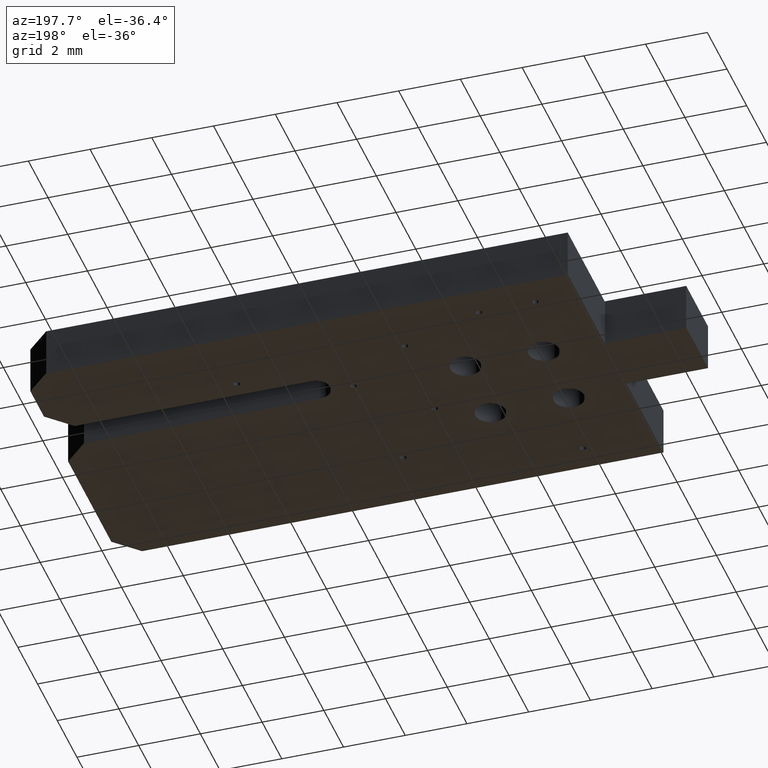
[diagram: clean part render]
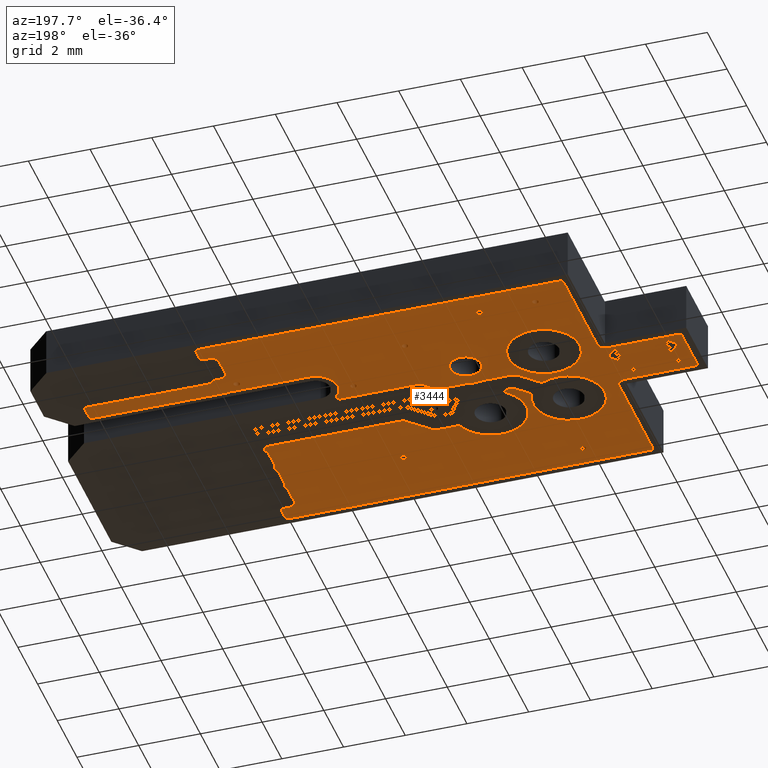
[diagram: same view with one face highlighted and labeled with its STEP entity id]
A machine part, auxiliary view. The second image highlights one B-rep face of the part: STEP entity #3444.
In plain terms, the highlighted planar face has unit normal (-0, -0, -1).
Its self-contained STEP definition (entity closure, byte-faithful):
#3444 = ADVANCED_FACE('',(#3445,#4072,#4092,#4112,#4132,#4152,#4172,
    #4192,#4212,#4232),#4252,.T.);
#3445 = FACE_BOUND('',#3446,.T.);
#3446 = EDGE_LOOP('',(#3447,#3457,#3466,#3474,#3483,#3491,#3500,#3508,
    #3517,#3525,#3534,#3542,#3551,#3559,#3568,#3576,#3585,#3593,#3601,
    #3609,#3617,#3625,#3633,#3642,#3651,#3659,#3668,#3676,#3685,#3693,
    #3702,#3710,#3719,#3727,#3736,#3745,#3754,#3763,#3771,#3780,#3788,
    #3797,#3806,#3815,#3824,#3832,#3841,#3849,#3858,#3866,#3875,#3884,
    #3893,#3902,#3910,#3919,#3928,#3937,#3945,#3954,#3963,#3972,#3980,
    #3989,#3997,#4006,#4014,#4023,#4031,#4040,#4048,#4057,#4065));
#3447 = ORIENTED_EDGE('',*,*,#3448,.T.);
#3448 = EDGE_CURVE('',#3449,#3451,#3453,.T.);
#3449 = VERTEX_POINT('',#3450);
#3450 = CARTESIAN_POINT('',(1.678943357887,-0.759461518923,0.));
#3451 = VERTEX_POINT('',#3452);
#3452 = CARTESIAN_POINT('',(1.678943357887,0.759461518923,0.));
#3453 = LINE('',#3454,#3455);
#3454 = CARTESIAN_POINT('',(1.678943357887,-0.759461518923,0.));
#3455 = VECTOR('',#3456,1.);
#3456 = DIRECTION('',(-1.461855534431E-16,1.,0.));
#3457 = ORIENTED_EDGE('',*,*,#3458,.T.);
#3458 = EDGE_CURVE('',#3451,#3459,#3461,.T.);
#3459 = VERTEX_POINT('',#3460);
#3460 = CARTESIAN_POINT('',(1.780543561087,0.861061722123,0.));
#3461 = CIRCLE('',#3462,0.1016002032);
#3462 = AXIS2_PLACEMENT_3D('',#3463,#3464,#3465);
#3463 = CARTESIAN_POINT('',(1.780543561087,0.759461518923,0.));
#3464 = DIRECTION('',(0.,0.,-1.));
#3465 = DIRECTION('',(-1.,-4.829260945186E-16,-0.));
#3466 = ORIENTED_EDGE('',*,*,#3467,.T.);
#3467 = EDGE_CURVE('',#3459,#3468,#3470,.T.);
#3468 = VERTEX_POINT('',#3469);
#3469 = CARTESIAN_POINT('',(4.064008128016,0.861061722123,0.));
#3470 = LINE('',#3471,#3472);
#3471 = CARTESIAN_POINT('',(1.780543561087,0.861061722123,0.));
#3472 = VECTOR('',#3473,1.);
#3473 = DIRECTION('',(1.,0.,0.));
#3474 = ORIENTED_EDGE('',*,*,#3475,.T.);
#3475 = EDGE_CURVE('',#3468,#3476,#3478,.T.);
#3476 = VERTEX_POINT('',#3477);
#3477 = CARTESIAN_POINT('',(4.320548641097,1.117602235204,0.));
#3478 = CIRCLE('',#3479,0.256540513081);
#3479 = AXIS2_PLACEMENT_3D('',#3480,#3481,#3482);
#3480 = CARTESIAN_POINT('',(4.064008128016,1.117602235204,0.));
#3481 = DIRECTION('',(0.,0.,1.));
#3482 = DIRECTION('',(5.355220058028E-16,-1.,0.));
#3483 = ORIENTED_EDGE('',*,*,#3484,.T.);
#3484 = EDGE_CURVE('',#3476,#3485,#3487,.T.);
#3485 = VERTEX_POINT('',#3486);
#3486 = CARTESIAN_POINT('',(4.320548641097,4.518669037338,0.));
#3487 = LINE('',#3488,#3489);
#3488 = CARTESIAN_POINT('',(4.320548641097,1.117602235204,0.));
#3489 = VECTOR('',#3490,1.);
#3490 = DIRECTION('',(0.,1.,0.));
#3491 = ORIENTED_EDGE('',*,*,#3492,.T.);
#3492 = EDGE_CURVE('',#3485,#3493,#3495,.T.);
#3493 = VERTEX_POINT('',#3494);
#3494 = CARTESIAN_POINT('',(4.422148844298,4.620269240538,0.));
#3495 = CIRCLE('',#3496,0.1016002032);
#3496 = AXIS2_PLACEMENT_3D('',#3497,#3498,#3499);
#3497 = CARTESIAN_POINT('',(4.422148844298,4.518669037338,0.));
#3498 = DIRECTION('',(0.,0.,-1.));
#3499 = DIRECTION('',(-1.,9.658521890372E-17,0.));
#3500 = ORIENTED_EDGE('',*,*,#3501,.T.);
#3501 = EDGE_CURVE('',#3493,#3502,#3504,.T.);
#3502 = VERTEX_POINT('',#3503);
#3503 = CARTESIAN_POINT('',(16.129032258065,4.620269240538,0.));
#3504 = LINE('',#3505,#3506);
#3505 = CARTESIAN_POINT('',(4.422148844298,4.620269240538,0.));
#3506 = VECTOR('',#3507,1.);
#3507 = DIRECTION('',(1.,0.,0.));
#3508 = ORIENTED_EDGE('',*,*,#3509,.T.);
#3509 = EDGE_CURVE('',#3502,#3510,#3512,.T.);
#3510 = VERTEX_POINT('',#3511);
#3511 = CARTESIAN_POINT('',(16.230632461265,4.518669037338,0.));
#3512 = CIRCLE('',#3513,0.1016002032);
#3513 = AXIS2_PLACEMENT_3D('',#3514,#3515,#3516);
#3514 = CARTESIAN_POINT('',(16.129032258065,4.518669037338,0.));
#3515 = DIRECTION('',(0.,0.,-1.));
#3516 = DIRECTION('',(4.442920069571E-15,1.,0.));
#3517 = ORIENTED_EDGE('',*,*,#3518,.T.);
#3518 = EDGE_CURVE('',#3510,#3519,#3521,.T.);
#3519 = VERTEX_POINT('',#3520);
#3520 = CARTESIAN_POINT('',(16.230632461265,4.163068326137,0.));
#3521 = LINE('',#3522,#3523);
#3522 = CARTESIAN_POINT('',(16.230632461265,4.518669037338,0.));
#3523 = VECTOR('',#3524,1.);
#3524 = DIRECTION('',(9.990738395313E-15,-1.,0.));
#3525 = ORIENTED_EDGE('',*,*,#3526,.T.);
#3526 = EDGE_CURVE('',#3519,#3527,#3529,.T.);
#3527 = VERTEX_POINT('',#3528);
#3528 = CARTESIAN_POINT('',(16.129032258065,4.061468122936,0.));
#3529 = CIRCLE('',#3530,0.1016002032);
#3530 = AXIS2_PLACEMENT_3D('',#3531,#3532,#3533);
#3531 = CARTESIAN_POINT('',(16.129032258065,4.163068326137,0.));
#3532 = DIRECTION('',(0.,0.,-1.));
#3533 = DIRECTION('',(1.,-1.313558977091E-14,0.));
#3534 = ORIENTED_EDGE('',*,*,#3535,.T.);
#3535 = EDGE_CURVE('',#3527,#3536,#3538,.T.);
#3536 = VERTEX_POINT('',#3537);
#3537 = CARTESIAN_POINT('',(15.963931927864,4.061468122936,0.));
#3538 = LINE('',#3539,#3540);
#3539 = CARTESIAN_POINT('',(16.129032258065,4.061468122936,0.));
#3540 = VECTOR('',#3541,1.);
#3541 = DIRECTION('',(-1.,5.379628366707E-15,0.));
#3542 = ORIENTED_EDGE('',*,*,#3543,.T.);
#3543 = EDGE_CURVE('',#3536,#3544,#3546,.T.);
#3544 = VERTEX_POINT('',#3545);
#3545 = CARTESIAN_POINT('',(15.707391414783,3.804927609855,0.));
#3546 = CIRCLE('',#3547,0.256540513081);
#3547 = AXIS2_PLACEMENT_3D('',#3548,#3549,#3550);
#3548 = CARTESIAN_POINT('',(15.963931927864,3.804927609855,0.));
#3549 = DIRECTION('',(0.,0.,1.));
#3550 = DIRECTION('',(2.448100597956E-15,1.,-0.));
#3551 = ORIENTED_EDGE('',*,*,#3552,.T.);
#3552 = EDGE_CURVE('',#3544,#3553,#3555,.T.);
#3553 = VERTEX_POINT('',#3554);
#3554 = CARTESIAN_POINT('',(15.707391414783,3.195326390653,0.));
#3555 = LINE('',#3556,#3557);
#3556 = CARTESIAN_POINT('',(15.707391414783,3.804927609855,0.));
#3557 = VECTOR('',#3558,1.);
#3558 = DIRECTION('',(2.913965365299E-15,-1.,0.));
#3559 = ORIENTED_EDGE('',*,*,#3560,.T.);
#3560 = EDGE_CURVE('',#3553,#3561,#3563,.T.);
#3561 = VERTEX_POINT('',#3562);
#3562 = CARTESIAN_POINT('',(15.963931927864,2.938785877572,0.));
#3563 = CIRCLE('',#3564,0.256540513081);
#3564 = AXIS2_PLACEMENT_3D('',#3565,#3566,#3567);
#3565 = CARTESIAN_POINT('',(15.963931927864,3.195326390653,0.));
#3566 = DIRECTION('',(0.,0.,1.));
#3567 = DIRECTION('',(-1.,1.683069161095E-15,0.));
#3568 = ORIENTED_EDGE('',*,*,#3569,.T.);
#3569 = EDGE_CURVE('',#3561,#3570,#3572,.T.);
#3570 = VERTEX_POINT('',#3571);
#3571 = CARTESIAN_POINT('',(16.129032258065,2.938785877572,0.));
#3572 = LINE('',#3573,#3574);
#3573 = CARTESIAN_POINT('',(15.963931927864,2.938785877572,0.));
#3574 = VECTOR('',#3575,1.);
#3575 = DIRECTION('',(1.,2.689814183353E-15,0.));
#3576 = ORIENTED_EDGE('',*,*,#3577,.T.);
#3577 = EDGE_CURVE('',#3570,#3578,#3580,.T.);
#3578 = VERTEX_POINT('',#3579);
#3579 = CARTESIAN_POINT('',(16.230632461265,2.837185674371,0.));
#3580 = CIRCLE('',#3581,0.1016002032);
#3581 = AXIS2_PLACEMENT_3D('',#3582,#3583,#3584);
#3582 = CARTESIAN_POINT('',(16.129032258065,2.837185674371,0.));
#3583 = DIRECTION('',(0.,0.,-1.));
#3584 = DIRECTION('',(6.567794885453E-15,1.,0.));
#3585 = ORIENTED_EDGE('',*,*,#3586,.T.);
#3586 = EDGE_CURVE('',#3578,#3587,#3589,.T.);
#3587 = VERTEX_POINT('',#3588);
#3588 = CARTESIAN_POINT('',(16.230632461265,2.804165608331,0.));
#3589 = LINE('',#3590,#3591);
#3590 = CARTESIAN_POINT('',(16.230632461265,2.837185674371,0.));
#3591 = VECTOR('',#3592,1.);
#3592 = DIRECTION('',(1.075925673341E-13,-1.,0.));
#3593 = ORIENTED_EDGE('',*,*,#3594,.T.);
#3594 = EDGE_CURVE('',#3587,#3595,#3597,.T.);
#3595 = VERTEX_POINT('',#3596);
#3596 = CARTESIAN_POINT('',(20.408940817882,2.804165608331,0.));
#3597 = LINE('',#3598,#3599);
#3598 = CARTESIAN_POINT('',(16.230632461265,2.804165608331,0.));
#3599 = VECTOR('',#3600,1.);
#3600 = DIRECTION('',(1.,-1.06284451014E-16,0.));
#3601 = ORIENTED_EDGE('',*,*,#3602,.T.);
#3602 = EDGE_CURVE('',#3595,#3603,#3605,.T.);
#3603 = VERTEX_POINT('',#3604);
#3604 = CARTESIAN_POINT('',(20.408940817882,2.194564389129,0.));
#3605 = LINE('',#3606,#3607);
#3606 = CARTESIAN_POINT('',(20.408940817882,2.804165608331,0.));
#3607 = VECTOR('',#3608,1.);
#3608 = DIRECTION('',(0.,-1.,0.));
#3609 = ORIENTED_EDGE('',*,*,#3610,.T.);
#3610 = EDGE_CURVE('',#3603,#3611,#3613,.T.);
#3611 = VERTEX_POINT('',#3612);
#3612 = CARTESIAN_POINT('',(15.963931927864,2.194564389129,0.));
#3613 = LINE('',#3614,#3615);
#3614 = CARTESIAN_POINT('',(20.408940817882,2.194564389129,0.));
#3615 = VECTOR('',#3616,1.);
#3616 = DIRECTION('',(-1.,9.990738395313E-17,0.));
#3617 = ORIENTED_EDGE('',*,*,#3618,.T.);
#3618 = EDGE_CURVE('',#3611,#3619,#3621,.T.);
#3619 = VERTEX_POINT('',#3620);
#3620 = CARTESIAN_POINT('',(15.963931927864,2.214884429769,0.));
#3621 = LINE('',#3622,#3623);
#3622 = CARTESIAN_POINT('',(15.963931927864,2.194564389129,0.));
#3623 = VECTOR('',#3624,1.);
#3624 = DIRECTION('',(0.,1.,0.));
#3625 = ORIENTED_EDGE('',*,*,#3626,.T.);
#3626 = EDGE_CURVE('',#3619,#3627,#3629,.T.);
#3627 = VERTEX_POINT('',#3628);
#3628 = CARTESIAN_POINT('',(13.309626619253,2.214884429769,0.));
#3629 = LINE('',#3630,#3631);
#3630 = CARTESIAN_POINT('',(15.963931927864,2.214884429769,0.));
#3631 = VECTOR('',#3632,1.);
#3632 = DIRECTION('',(-1.,1.673090161894E-16,0.));
#3633 = ORIENTED_EDGE('',*,*,#3634,.T.);
#3634 = EDGE_CURVE('',#3627,#3635,#3637,.T.);
#3635 = VERTEX_POINT('',#3636);
#3636 = CARTESIAN_POINT('',(12.796235489926,1.005303942072,0.));
#3637 = CIRCLE('',#3638,0.713741427483);
#3638 = AXIS2_PLACEMENT_3D('',#3639,#3640,#3641);
#3639 = CARTESIAN_POINT('',(13.309626619253,1.501143002286,0.));
#3640 = DIRECTION('',(0.,0.,1.));
#3641 = DIRECTION('',(-1.689808105186E-16,1.,0.));
#3642 = ORIENTED_EDGE('',*,*,#3643,.T.);
#3643 = EDGE_CURVE('',#3635,#3644,#3646,.T.);
#3644 = VERTEX_POINT('',#3645);
#3645 = CARTESIAN_POINT('',(12.723154902122,0.833121666243,0.));
#3646 = CIRCLE('',#3647,0.1016002032);
#3647 = AXIS2_PLACEMENT_3D('',#3648,#3649,#3650);
#3648 = CARTESIAN_POINT('',(12.723154902122,0.934721869444,0.));
#3649 = DIRECTION('',(0.,0.,-1.));
#3650 = DIRECTION('',(0.719295685466,0.694704049844,0.));
#3651 = ORIENTED_EDGE('',*,*,#3652,.T.);
#3652 = EDGE_CURVE('',#3644,#3653,#3655,.T.);
#3653 = VERTEX_POINT('',#3654);
#3654 = CARTESIAN_POINT('',(10.279400558801,0.833121666243,0.));
#3655 = LINE('',#3656,#3657);
#3656 = CARTESIAN_POINT('',(12.723154902122,0.833121666243,0.));
#3657 = VECTOR('',#3658,1.);
#3658 = DIRECTION('',(-1.,9.086208093375E-17,0.));
#3659 = ORIENTED_EDGE('',*,*,#3660,.T.);
#3660 = EDGE_CURVE('',#3653,#3661,#3663,.T.);
#3661 = VERTEX_POINT('',#3662);
#3662 = CARTESIAN_POINT('',(10.044117377863,0.7356641817,0.));
#3663 = CIRCLE('',#3664,0.332740665481);
#3664 = AXIS2_PLACEMENT_3D('',#3665,#3666,#3667);
#3665 = CARTESIAN_POINT('',(10.279400558801,0.500381000762,0.));
#3666 = DIRECTION('',(0.,0.,1.));
#3667 = DIRECTION('',(6.539220046774E-16,1.,-0.));
#3668 = ORIENTED_EDGE('',*,*,#3669,.T.);
#3669 = EDGE_CURVE('',#3661,#3670,#3672,.T.);
#3670 = VERTEX_POINT('',#3671);
#3671 = CARTESIAN_POINT('',(9.747152024591,0.438698828429,0.));
#3672 = LINE('',#3673,#3674);
#3673 = CARTESIAN_POINT('',(10.044117377863,0.7356641817,0.));
#3674 = VECTOR('',#3675,1.);
#3675 = DIRECTION('',(-0.707106781187,-0.707106781187,0.));
#3676 = ORIENTED_EDGE('',*,*,#3677,.T.);
#3677 = EDGE_CURVE('',#3670,#3678,#3680,.T.);
#3678 = VERTEX_POINT('',#3679);
#3679 = CARTESIAN_POINT('',(9.675309831939,0.408940817882,0.));
#3680 = CIRCLE('',#3681,0.1016002032);
#3681 = AXIS2_PLACEMENT_3D('',#3682,#3683,#3684);
#3682 = CARTESIAN_POINT('',(9.675309831939,0.510541021082,0.));
#3683 = DIRECTION('',(0.,0.,-1.));
#3684 = DIRECTION('',(0.707106781187,-0.707106781187,0.));
#3685 = ORIENTED_EDGE('',*,*,#3686,.T.);
#3686 = EDGE_CURVE('',#3678,#3687,#3689,.T.);
#3687 = VERTEX_POINT('',#3688);
#3688 = CARTESIAN_POINT('',(8.796280985199,0.408940817882,0.));
#3689 = LINE('',#3690,#3691);
#3690 = CARTESIAN_POINT('',(9.675309831939,0.408940817882,0.));
#3691 = VECTOR('',#3692,1.);
#3692 = DIRECTION('',(-1.,3.789032733372E-16,0.));
#3693 = ORIENTED_EDGE('',*,*,#3694,.T.);
#3694 = EDGE_CURVE('',#3687,#3695,#3697,.T.);
#3695 = VERTEX_POINT('',#3696);
#3696 = CARTESIAN_POINT('',(8.27255315247,0.408940817882,0.));
#3697 = CIRCLE('',#3698,0.9);
#3698 = AXIS2_PLACEMENT_3D('',#3699,#3700,#3701);
#3699 = CARTESIAN_POINT('',(8.534417068834,1.270002540005,0.));
#3700 = DIRECTION('',(-0.,0.,-1.));
#3701 = DIRECTION('',(0.290959907072,-0.956735246804,-0.));
#3702 = ORIENTED_EDGE('',*,*,#3703,.T.);
#3703 = EDGE_CURVE('',#3695,#3704,#3706,.T.);
#3704 = VERTEX_POINT('',#3705);
#3705 = CARTESIAN_POINT('',(7.340614681229,0.408940817882,0.));
#3706 = LINE('',#3707,#3708);
#3707 = CARTESIAN_POINT('',(8.27255315247,0.408940817882,0.));
#3708 = VECTOR('',#3709,1.);
#3709 = DIRECTION('',(-1.,-2.978262672072E-16,0.));
#3710 = ORIENTED_EDGE('',*,*,#3711,.T.);
#3711 = EDGE_CURVE('',#3704,#3712,#3714,.T.);
#3712 = VERTEX_POINT('',#3713);
#3713 = CARTESIAN_POINT('',(7.105331500291,0.311483333339,0.));
#3714 = CIRCLE('',#3715,0.332740665481);
#3715 = AXIS2_PLACEMENT_3D('',#3716,#3717,#3718);
#3716 = CARTESIAN_POINT('',(7.340614681229,7.62001524003E-02,0.));
#3717 = DIRECTION('',(0.,0.,1.));
#3718 = DIRECTION('',(-2.724675019489E-16,1.,0.));
#3719 = ORIENTED_EDGE('',*,*,#3720,.T.);
#3720 = EDGE_CURVE('',#3712,#3721,#3723,.T.);
#3721 = VERTEX_POINT('',#3722);
#3722 = CARTESIAN_POINT('',(6.594073737734,-0.199774429219,0.));
#3723 = LINE('',#3724,#3725);
#3724 = CARTESIAN_POINT('',(7.105331500291,0.311483333339,0.));
#3725 = VECTOR('',#3726,1.);
#3726 = DIRECTION('',(-0.707106781187,-0.707106781187,0.));
#3727 = ORIENTED_EDGE('',*,*,#3728,.T.);
#3728 = EDGE_CURVE('',#3721,#3729,#3731,.T.);
#3729 = VERTEX_POINT('',#3730);
#3730 = CARTESIAN_POINT('',(6.479607875506,-0.220159261251,0.));
#3731 = CIRCLE('',#3732,0.1016002032);
#3732 = AXIS2_PLACEMENT_3D('',#3733,#3734,#3735);
#3733 = CARTESIAN_POINT('',(6.522231545081,-0.127932236566,0.));
#3734 = DIRECTION('',(0.,0.,-1.));
#3735 = DIRECTION('',(0.707106781187,-0.707106781187,0.));
#3736 = ORIENTED_EDGE('',*,*,#3737,.T.);
#3737 = EDGE_CURVE('',#3729,#3738,#3740,.T.);
#3738 = VERTEX_POINT('',#3739);
#3739 = CARTESIAN_POINT('',(5.176614349307,-2.087800179522,0.));
#3740 = CIRCLE('',#3741,1.156540513081);
#3741 = AXIS2_PLACEMENT_3D('',#3742,#3743,#3744);
#3742 = CARTESIAN_POINT('',(5.994411988824,-1.270002540005,0.));
#3743 = DIRECTION('',(0.,0.,1.));
#3744 = DIRECTION('',(0.419523467786,0.907744490469,-0.));
#3745 = ORIENTED_EDGE('',*,*,#3746,.T.);
#3746 = EDGE_CURVE('',#3738,#3747,#3749,.T.);
#3747 = VERTEX_POINT('',#3748);
#3748 = CARTESIAN_POINT('',(7.044255267578,-0.784806653323,0.));
#3749 = CIRCLE('',#3750,1.156540513081);
#3750 = AXIS2_PLACEMENT_3D('',#3751,#3752,#3753);
#3751 = CARTESIAN_POINT('',(5.994411988824,-1.270002540005,0.));
#3752 = DIRECTION('',(0.,0.,1.));
#3753 = DIRECTION('',(-0.707106781187,-0.707106781187,0.));
#3754 = ORIENTED_EDGE('',*,*,#3755,.T.);
#3755 = EDGE_CURVE('',#3747,#3756,#3758,.T.);
#3756 = VERTEX_POINT('',#3757);
#3757 = CARTESIAN_POINT('',(7.06464009961,-0.670340791095,0.));
#3758 = CIRCLE('',#3759,0.1016002032);
#3759 = AXIS2_PLACEMENT_3D('',#3760,#3761,#3762);
#3760 = CARTESIAN_POINT('',(7.136482292263,-0.742182983748,0.));
#3761 = DIRECTION('',(0.,0.,-1.));
#3762 = DIRECTION('',(-0.907744490469,-0.419523467786,-0.));
#3763 = ORIENTED_EDGE('',*,*,#3764,.T.);
#3764 = EDGE_CURVE('',#3756,#3765,#3767,.T.);
#3765 = VERTEX_POINT('',#3766);
#3766 = CARTESIAN_POINT('',(7.448682367077,-0.286298523628,0.));
#3767 = LINE('',#3768,#3769);
#3768 = CARTESIAN_POINT('',(7.06464009961,-0.670340791095,0.));
#3769 = VECTOR('',#3770,1.);
#3770 = DIRECTION('',(0.707106781187,0.707106781187,0.));
#3771 = ORIENTED_EDGE('',*,*,#3772,.T.);
#3772 = EDGE_CURVE('',#3765,#3773,#3775,.T.);
#3773 = VERTEX_POINT('',#3774);
#3774 = CARTESIAN_POINT('',(7.52052455973,-0.256540513081,0.));
#3775 = CIRCLE('',#3776,0.1016002032);
#3776 = AXIS2_PLACEMENT_3D('',#3777,#3778,#3779);
#3777 = CARTESIAN_POINT('',(7.52052455973,-0.358140716281,0.));
#3778 = DIRECTION('',(0.,0.,-1.));
#3779 = DIRECTION('',(-0.707106781187,0.707106781187,0.));
#3780 = ORIENTED_EDGE('',*,*,#3781,.T.);
#3781 = EDGE_CURVE('',#3773,#3782,#3784,.T.);
#3782 = VERTEX_POINT('',#3783);
#3783 = CARTESIAN_POINT('',(7.667568710469,-0.256540513081,0.));
#3784 = LINE('',#3785,#3786);
#3785 = CARTESIAN_POINT('',(7.52052455973,-0.256540513081,0.));
#3786 = VECTOR('',#3787,1.);
#3787 = DIRECTION('',(1.,-2.265080968638E-15,0.));
#3788 = ORIENTED_EDGE('',*,*,#3789,.T.);
#3789 = EDGE_CURVE('',#3782,#3790,#3792,.T.);
#3790 = VERTEX_POINT('',#3791);
#3791 = CARTESIAN_POINT('',(7.73757039487,-0.431777429077,0.));
#3792 = CIRCLE('',#3793,0.1016002032);
#3793 = AXIS2_PLACEMENT_3D('',#3794,#3795,#3796);
#3794 = CARTESIAN_POINT('',(7.667568710469,-0.358140716281,0.));
#3795 = DIRECTION('',(0.,0.,-1.));
#3796 = DIRECTION('',(-1.412038001135E-14,1.,0.));
#3797 = ORIENTED_EDGE('',*,*,#3798,.T.);
#3798 = EDGE_CURVE('',#3790,#3799,#3801,.T.);
#3799 = VERTEX_POINT('',#3800);
#3800 = CARTESIAN_POINT('',(7.899069054612,-2.236397314009,0.));
#3801 = CIRCLE('',#3802,1.156540513081);
#3802 = AXIS2_PLACEMENT_3D('',#3803,#3804,#3805);
#3803 = CARTESIAN_POINT('',(8.534417068834,-1.270002540005,0.));
#3804 = DIRECTION('',(0.,0.,1.));
#3805 = DIRECTION('',(-0.688991578722,0.724769345689,0.));
#3806 = ORIENTED_EDGE('',*,*,#3807,.T.);
#3807 = EDGE_CURVE('',#3799,#3808,#3810,.T.);
#3808 = VERTEX_POINT('',#3809);
#3809 = CARTESIAN_POINT('',(9.619853672101,-1.669268539918,0.));
#3810 = CIRCLE('',#3811,1.156540513081);
#3811 = AXIS2_PLACEMENT_3D('',#3812,#3813,#3814);
#3812 = CARTESIAN_POINT('',(8.534417068834,-1.270002540005,0.));
#3813 = DIRECTION('',(0.,0.,1.));
#3814 = DIRECTION('',(-0.549352147233,-0.835590939594,0.));
#3815 = ORIENTED_EDGE('',*,*,#3816,.T.);
#3816 = EDGE_CURVE('',#3808,#3817,#3819,.T.);
#3817 = VERTEX_POINT('',#3818);
#3818 = CARTESIAN_POINT('',(9.71520751246,-1.602743205486,0.));
#3819 = CIRCLE('',#3820,0.1016002032);
#3820 = AXIS2_PLACEMENT_3D('',#3821,#3822,#3823);
#3821 = CARTESIAN_POINT('',(9.71520751246,-1.704343408687,0.));
#3822 = DIRECTION('',(0.,0.,-1.));
#3823 = DIRECTION('',(-0.938520173734,0.345224395857,0.));
#3824 = ORIENTED_EDGE('',*,*,#3825,.T.);
#3825 = EDGE_CURVE('',#3817,#3826,#3828,.T.);
#3826 = VERTEX_POINT('',#3827);
#3827 = CARTESIAN_POINT('',(10.312420624841,-1.602743205486,0.));
#3828 = LINE('',#3829,#3830);
#3829 = CARTESIAN_POINT('',(9.71520751246,-1.602743205486,0.));
#3830 = VECTOR('',#3831,1.);
#3831 = DIRECTION('',(1.,3.718012888894E-16,0.));
#3832 = ORIENTED_EDGE('',*,*,#3833,.T.);
#3833 = EDGE_CURVE('',#3826,#3834,#3836,.T.);
#3834 = VERTEX_POINT('',#3835);
#3835 = CARTESIAN_POINT('',(10.54770380578,-1.505285720943,0.));
#3836 = CIRCLE('',#3837,0.332740665481);
#3837 = AXIS2_PLACEMENT_3D('',#3838,#3839,#3840);
#3838 = CARTESIAN_POINT('',(10.312420624841,-1.270002540005,0.));
#3839 = DIRECTION('',(0.,0.,1.));
#3840 = DIRECTION('',(-1.253350508965E-15,-1.,0.));
#3841 = ORIENTED_EDGE('',*,*,#3842,.T.);
#3842 = EDGE_CURVE('',#3834,#3843,#3845,.T.);
#3843 = VERTEX_POINT('',#3844);
#3844 = CARTESIAN_POINT('',(11.190109849932,-0.862879676791,0.));
#3845 = LINE('',#3846,#3847);
#3846 = CARTESIAN_POINT('',(10.54770380578,-1.505285720943,0.));
#3847 = VECTOR('',#3848,1.);
#3848 = DIRECTION('',(0.707106781187,0.707106781187,0.));
#3849 = ORIENTED_EDGE('',*,*,#3850,.T.);
#3850 = EDGE_CURVE('',#3843,#3851,#3853,.T.);
#3851 = VERTEX_POINT('',#3852);
#3852 = CARTESIAN_POINT('',(11.261952042585,-0.833121666243,0.));
#3853 = CIRCLE('',#3854,0.1016002032);
#3854 = AXIS2_PLACEMENT_3D('',#3855,#3856,#3857);
#3855 = CARTESIAN_POINT('',(11.261952042585,-0.934721869444,0.));
#3856 = DIRECTION('',(0.,0.,-1.));
#3857 = DIRECTION('',(-0.707106781187,0.707106781187,0.));
#3858 = ORIENTED_EDGE('',*,*,#3859,.T.);
#3859 = EDGE_CURVE('',#3851,#3860,#3862,.T.);
#3860 = VERTEX_POINT('',#3861);
#3861 = CARTESIAN_POINT('',(15.630039589024,-0.833121666243,0.));
#3862 = LINE('',#3863,#3864);
#3863 = CARTESIAN_POINT('',(11.261952042585,-0.833121666243,0.));
#3864 = VECTOR('',#3865,1.);
#3865 = DIRECTION('',(1.,-2.541668436866E-17,0.));
#3866 = ORIENTED_EDGE('',*,*,#3867,.T.);
#3867 = EDGE_CURVE('',#3860,#3868,#3870,.T.);
#3868 = VERTEX_POINT('',#3869);
#3869 = CARTESIAN_POINT('',(15.724760819901,-0.897972859776,0.));
#3870 = CIRCLE('',#3871,0.1016002032);
#3871 = AXIS2_PLACEMENT_3D('',#3872,#3873,#3874);
#3872 = CARTESIAN_POINT('',(15.630039589024,-0.934721869444,0.));
#3873 = DIRECTION('',(0.,0.,-1.));
#3874 = DIRECTION('',(2.599186424139E-15,1.,0.));
#3875 = ORIENTED_EDGE('',*,*,#3876,.T.);
#3876 = EDGE_CURVE('',#3868,#3877,#3879,.T.);
#3877 = VERTEX_POINT('',#3878);
#3878 = CARTESIAN_POINT('',(15.749022691925,-0.945278202613,0.));
#3879 = CIRCLE('',#3880,0.256540513081);
#3880 = AXIS2_PLACEMENT_3D('',#3881,#3882,#3883);
#3881 = CARTESIAN_POINT('',(15.963931927864,-0.805181610363,0.));
#3882 = DIRECTION('',(0.,0.,1.));
#3883 = DIRECTION('',(-0.932293714902,-0.36170212766,0.));
#3884 = ORIENTED_EDGE('',*,*,#3885,.T.);
#3885 = EDGE_CURVE('',#3877,#3886,#3888,.T.);
#3886 = VERTEX_POINT('',#3887);
#3887 = CARTESIAN_POINT('',(15.749022691925,-1.056245800435,0.));
#3888 = CIRCLE('',#3889,0.1016002032);
#3889 = AXIS2_PLACEMENT_3D('',#3890,#3891,#3892);
#3890 = CARTESIAN_POINT('',(15.663910123236,-1.000762001524,0.));
#3891 = DIRECTION('',(0.,0.,-1.));
#3892 = DIRECTION('',(0.837720457318,0.54609929078,0.));
#3893 = ORIENTED_EDGE('',*,*,#3894,.T.);
#3894 = EDGE_CURVE('',#3886,#3895,#3897,.T.);
#3895 = VERTEX_POINT('',#3896);
#3896 = CARTESIAN_POINT('',(15.707391414783,-1.196342392685,0.));
#3897 = CIRCLE('',#3898,0.256540513081);
#3898 = AXIS2_PLACEMENT_3D('',#3899,#3900,#3901);
#3899 = CARTESIAN_POINT('',(15.963931927864,-1.196342392685,0.));
#3900 = DIRECTION('',(0.,0.,1.));
#3901 = DIRECTION('',(-0.837720457318,0.54609929078,0.));
#3902 = ORIENTED_EDGE('',*,*,#3903,.T.);
#3903 = EDGE_CURVE('',#3895,#3904,#3906,.T.);
#3904 = VERTEX_POINT('',#3905);
#3905 = CARTESIAN_POINT('',(15.707391414783,-1.805943611887,0.));
#3906 = LINE('',#3907,#3908);
#3907 = CARTESIAN_POINT('',(15.707391414783,-1.196342392685,0.));
#3908 = VECTOR('',#3909,1.);
#3909 = DIRECTION('',(2.913965365299E-15,-1.,0.));
#3910 = ORIENTED_EDGE('',*,*,#3911,.T.);
#3911 = EDGE_CURVE('',#3904,#3912,#3914,.T.);
#3912 = VERTEX_POINT('',#3913);
#3913 = CARTESIAN_POINT('',(15.749022691925,-1.946040204137,0.));
#3914 = CIRCLE('',#3915,0.256540513081);
#3915 = AXIS2_PLACEMENT_3D('',#3916,#3917,#3918);
#3916 = CARTESIAN_POINT('',(15.963931927864,-1.805943611887,0.));
#3917 = DIRECTION('',(0.,0.,1.));
#3918 = DIRECTION('',(-1.,3.608286346834E-15,0.));
#3919 = ORIENTED_EDGE('',*,*,#3920,.T.);
#3920 = EDGE_CURVE('',#3912,#3921,#3923,.T.);
#3921 = VERTEX_POINT('',#3922);
#3922 = CARTESIAN_POINT('',(15.749022691925,-2.057007801959,0.));
#3923 = CIRCLE('',#3924,0.1016002032);
#3924 = AXIS2_PLACEMENT_3D('',#3925,#3926,#3927);
#3925 = CARTESIAN_POINT('',(15.663910123236,-2.001524003048,0.));
#3926 = DIRECTION('',(0.,0.,-1.));
#3927 = DIRECTION('',(0.837720457318,0.54609929078,0.));
#3928 = ORIENTED_EDGE('',*,*,#3929,.T.);
#3929 = EDGE_CURVE('',#3921,#3930,#3932,.T.);
#3930 = VERTEX_POINT('',#3931);
#3931 = CARTESIAN_POINT('',(15.707391414783,-2.197104394209,0.));
#3932 = CIRCLE('',#3933,0.256540513081);
#3933 = AXIS2_PLACEMENT_3D('',#3934,#3935,#3936);
#3934 = CARTESIAN_POINT('',(15.963931927864,-2.197104394209,0.));
#3935 = DIRECTION('',(0.,0.,1.));
#3936 = DIRECTION('',(-0.837720457318,0.54609929078,0.));
#3937 = ORIENTED_EDGE('',*,*,#3938,.T.);
#3938 = EDGE_CURVE('',#3930,#3939,#3941,.T.);
#3939 = VERTEX_POINT('',#3940);
#3940 = CARTESIAN_POINT('',(15.707391414783,-2.806705613411,0.));
#3941 = LINE('',#3942,#3943);
#3942 = CARTESIAN_POINT('',(15.707391414783,-2.197104394209,0.));
#3943 = VECTOR('',#3944,1.);
#3944 = DIRECTION('',(-2.913965365299E-15,-1.,0.));
#3945 = ORIENTED_EDGE('',*,*,#3946,.T.);
#3946 = EDGE_CURVE('',#3939,#3947,#3949,.T.);
#3947 = VERTEX_POINT('',#3948);
#3948 = CARTESIAN_POINT('',(15.749022691925,-2.946802205661,0.));
#3949 = CIRCLE('',#3950,0.256540513081);
#3950 = AXIS2_PLACEMENT_3D('',#3951,#3952,#3953);
#3951 = CARTESIAN_POINT('',(15.963931927864,-2.806705613411,0.));
#3952 = DIRECTION('',(0.,0.,1.));
#3953 = DIRECTION('',(-1.,6.124591299232E-15,0.));
#3954 = ORIENTED_EDGE('',*,*,#3955,.T.);
#3955 = EDGE_CURVE('',#3947,#3956,#3958,.T.);
#3956 = VERTEX_POINT('',#3957);
#3957 = CARTESIAN_POINT('',(15.749022691925,-3.057769803483,0.));
#3958 = CIRCLE('',#3959,0.1016002032);
#3959 = AXIS2_PLACEMENT_3D('',#3960,#3961,#3962);
#3960 = CARTESIAN_POINT('',(15.663910123236,-3.002286004572,0.));
#3961 = DIRECTION('',(0.,0.,-1.));
#3962 = DIRECTION('',(0.837720457318,0.54609929078,0.));
#3963 = ORIENTED_EDGE('',*,*,#3964,.T.);
#3964 = EDGE_CURVE('',#3956,#3965,#3967,.T.);
#3965 = VERTEX_POINT('',#3966);
#3966 = CARTESIAN_POINT('',(15.707391414783,-3.197866395733,0.));
#3967 = CIRCLE('',#3968,0.256540513081);
#3968 = AXIS2_PLACEMENT_3D('',#3969,#3970,#3971);
#3969 = CARTESIAN_POINT('',(15.963931927864,-3.197866395733,0.));
#3970 = DIRECTION('',(0.,0.,1.));
#3971 = DIRECTION('',(-0.837720457318,0.54609929078,0.));
#3972 = ORIENTED_EDGE('',*,*,#3973,.T.);
#3973 = EDGE_CURVE('',#3965,#3974,#3976,.T.);
#3974 = VERTEX_POINT('',#3975);
#3975 = CARTESIAN_POINT('',(15.707391414783,-3.807467614935,0.));
#3976 = LINE('',#3977,#3978);
#3977 = CARTESIAN_POINT('',(15.707391414783,-3.197866395733,0.));
#3978 = VECTOR('',#3979,1.);
#3979 = DIRECTION('',(2.913965365299E-15,-1.,0.));
#3980 = ORIENTED_EDGE('',*,*,#3981,.T.);
#3981 = EDGE_CURVE('',#3974,#3982,#3984,.T.);
#3982 = VERTEX_POINT('',#3983);
#3983 = CARTESIAN_POINT('',(15.963931927864,-4.064008128016,0.));
#3984 = CIRCLE('',#3985,0.256540513081);
#3985 = AXIS2_PLACEMENT_3D('',#3986,#3987,#3988);
#3986 = CARTESIAN_POINT('',(15.963931927864,-3.807467614935,0.));
#3987 = DIRECTION('',(0.,0.,1.));
#3988 = DIRECTION('',(-1.,1.683069161095E-15,0.));
#3989 = ORIENTED_EDGE('',*,*,#3990,.T.);
#3990 = EDGE_CURVE('',#3982,#3991,#3993,.T.);
#3991 = VERTEX_POINT('',#3992);
#3992 = CARTESIAN_POINT('',(16.129032258065,-4.064008128016,0.));
#3993 = LINE('',#3994,#3995);
#3994 = CARTESIAN_POINT('',(15.963931927864,-4.064008128016,0.));
#3995 = VECTOR('',#3996,1.);
#3996 = DIRECTION('',(1.,0.,0.));
#3997 = ORIENTED_EDGE('',*,*,#3998,.T.);
#3998 = EDGE_CURVE('',#3991,#3999,#4001,.T.);
#3999 = VERTEX_POINT('',#4000);
#4000 = CARTESIAN_POINT('',(16.230632461265,-4.165608331217,0.));
#4001 = CIRCLE('',#4002,0.1016002032);
#4002 = AXIS2_PLACEMENT_3D('',#4003,#4004,#4005);
#4003 = CARTESIAN_POINT('',(16.129032258065,-4.165608331217,0.));
#4004 = DIRECTION('',(0.,0.,-1.));
#4005 = DIRECTION('',(4.442920069571E-15,1.,0.));
#4006 = ORIENTED_EDGE('',*,*,#4007,.T.);
#4007 = EDGE_CURVE('',#3999,#4008,#4010,.T.);
#4008 = VERTEX_POINT('',#4009);
#4009 = CARTESIAN_POINT('',(16.230632461265,-4.518669037338,0.));
#4010 = LINE('',#4011,#4012);
#4011 = CARTESIAN_POINT('',(16.230632461265,-4.165608331217,0.));
#4012 = VECTOR('',#4013,1.);
#4013 = DIRECTION('',(1.006261421111E-14,-1.,0.));
#4014 = ORIENTED_EDGE('',*,*,#4015,.T.);
#4015 = EDGE_CURVE('',#4008,#4016,#4018,.T.);
#4016 = VERTEX_POINT('',#4017);
#4017 = CARTESIAN_POINT('',(16.129032258065,-4.620269240538,0.));
#4018 = CIRCLE('',#4019,0.1016002032);
#4019 = AXIS2_PLACEMENT_3D('',#4020,#4021,#4022);
#4020 = CARTESIAN_POINT('',(16.129032258065,-4.518669037338,0.));
#4021 = DIRECTION('',(0.,0.,-1.));
#4022 = DIRECTION('',(1.,-1.313558977091E-14,0.));
#4023 = ORIENTED_EDGE('',*,*,#4024,.T.);
#4024 = EDGE_CURVE('',#4016,#4025,#4027,.T.);
#4025 = VERTEX_POINT('',#4026);
#4026 = CARTESIAN_POINT('',(4.422148844298,-4.620269240538,0.));
#4027 = LINE('',#4028,#4029);
#4028 = CARTESIAN_POINT('',(16.129032258065,-4.620269240538,0.));
#4029 = VECTOR('',#4030,1.);
#4030 = DIRECTION('',(-1.,0.,0.));
#4031 = ORIENTED_EDGE('',*,*,#4032,.T.);
#4032 = EDGE_CURVE('',#4025,#4033,#4035,.T.);
#4033 = VERTEX_POINT('',#4034);
#4034 = CARTESIAN_POINT('',(4.320548641097,-4.518669037338,0.));
#4035 = CIRCLE('',#4036,0.1016002032);
#4036 = AXIS2_PLACEMENT_3D('',#4037,#4038,#4039);
#4037 = CARTESIAN_POINT('',(4.422148844298,-4.518669037338,0.));
#4038 = DIRECTION('',(0.,0.,-1.));
#4039 = DIRECTION('',(-9.658521890372E-17,-1.,-0.));
#4040 = ORIENTED_EDGE('',*,*,#4041,.T.);
#4041 = EDGE_CURVE('',#4033,#4042,#4044,.T.);
#4042 = VERTEX_POINT('',#4043);
#4043 = CARTESIAN_POINT('',(4.320548641097,-1.117602235204,0.));
#4044 = LINE('',#4045,#4046);
#4045 = CARTESIAN_POINT('',(4.320548641097,-4.518669037338,0.));
#4046 = VECTOR('',#4047,1.);
#4047 = DIRECTION('',(0.,1.,0.));
#4048 = ORIENTED_EDGE('',*,*,#4049,.T.);
#4049 = EDGE_CURVE('',#4042,#4050,#4052,.T.);
#4050 = VERTEX_POINT('',#4051);
#4051 = CARTESIAN_POINT('',(4.064008128016,-0.861061722123,0.));
#4052 = CIRCLE('',#4053,0.256540513081);
#4053 = AXIS2_PLACEMENT_3D('',#4054,#4055,#4056);
#4054 = CARTESIAN_POINT('',(4.064008128016,-1.117602235204,0.));
#4055 = DIRECTION('',(0.,-0.,1.));
#4056 = DIRECTION('',(1.,-3.825157184306E-16,-0.));
#4057 = ORIENTED_EDGE('',*,*,#4058,.T.);
#4058 = EDGE_CURVE('',#4050,#4059,#4061,.T.);
#4059 = VERTEX_POINT('',#4060);
#4060 = CARTESIAN_POINT('',(1.780543561087,-0.861061722123,0.));
#4061 = LINE('',#4062,#4063);
#4062 = CARTESIAN_POINT('',(4.064008128016,-0.861061722123,0.));
#4063 = VECTOR('',#4064,1.);
#4064 = DIRECTION('',(-1.,-9.724022353613E-17,0.));
#4065 = ORIENTED_EDGE('',*,*,#4066,.T.);
#4066 = EDGE_CURVE('',#4059,#3449,#4067,.T.);
#4067 = CIRCLE('',#4068,0.1016002032);
#4068 = AXIS2_PLACEMENT_3D('',#4069,#4070,#4071);
#4069 = CARTESIAN_POINT('',(1.780543561087,-0.759461518923,0.));
#4070 = DIRECTION('',(0.,0.,-1.));
#4071 = DIRECTION('',(-9.658521890372E-17,-1.,-0.));
#4072 = FACE_BOUND('',#4073,.T.);
#4073 = EDGE_LOOP('',(#4074,#4085));
#4074 = ORIENTED_EDGE('',*,*,#4075,.T.);
#4075 = EDGE_CURVE('',#4076,#4078,#4080,.T.);
#4076 = VERTEX_POINT('',#4077);
#4077 = CARTESIAN_POINT('',(11.709423418847,-2.667005334011,0.));
#4078 = VERTEX_POINT('',#4079);
#4079 = CARTESIAN_POINT('',(11.912623825248,-2.667005334011,0.));
#4080 = CIRCLE('',#4081,0.1016002032);
#4081 = AXIS2_PLACEMENT_3D('',#4082,#4083,#4084);
#4082 = CARTESIAN_POINT('',(11.811023622047,-2.667005334011,0.));
#4083 = DIRECTION('',(0.,0.,1.));
#4084 = DIRECTION('',(-1.,-1.110223024625E-16,0.));
#4085 = ORIENTED_EDGE('',*,*,#4086,.T.);
#4086 = EDGE_CURVE('',#4078,#4076,#4087,.T.);
#4087 = CIRCLE('',#4088,0.1016002032);
#4088 = AXIS2_PLACEMENT_3D('',#4089,#4090,#4091);
#4089 = CARTESIAN_POINT('',(11.811023622047,-2.667005334011,0.));
#4090 = DIRECTION('',(0.,0.,1.));
#4091 = DIRECTION('',(1.,1.110223024625E-16,-0.));
#4092 = FACE_BOUND('',#4093,.T.);
#4093 = EDGE_LOOP('',(#4094,#4105));
#4094 = ORIENTED_EDGE('',*,*,#4095,.T.);
#4095 = EDGE_CURVE('',#4096,#4098,#4100,.T.);
#4096 = VERTEX_POINT('',#4097);
#4097 = CARTESIAN_POINT('',(6.273812547625,-3.886207772416,0.));
#4098 = VERTEX_POINT('',#4099);
#4099 = CARTESIAN_POINT('',(6.477012954026,-3.886207772416,0.));
#4100 = CIRCLE('',#4101,0.1016002032);
#4101 = AXIS2_PLACEMENT_3D('',#4102,#4103,#4104);
#4102 = CARTESIAN_POINT('',(6.375412750826,-3.886207772416,0.));
#4103 = DIRECTION('',(0.,0.,1.));
#4104 = DIRECTION('',(-1.,-1.110223024625E-16,0.));
#4105 = ORIENTED_EDGE('',*,*,#4106,.T.);
#4106 = EDGE_CURVE('',#4098,#4096,#4107,.T.);
#4107 = CIRCLE('',#4108,0.1016002032);
#4108 = AXIS2_PLACEMENT_3D('',#4109,#4110,#4111);
#4109 = CARTESIAN_POINT('',(6.375412750826,-3.886207772416,0.));
#4110 = DIRECTION('',(0.,0.,1.));
#4111 = DIRECTION('',(1.,1.110223024625E-16,-0.));
#4112 = FACE_BOUND('',#4113,.T.);
#4113 = EDGE_LOOP('',(#4114,#4125));
#4114 = ORIENTED_EDGE('',*,*,#4115,.T.);
#4115 = EDGE_CURVE('',#4116,#4118,#4120,.T.);
#4116 = VERTEX_POINT('',#4117);
#4117 = CARTESIAN_POINT('',(12.039624079248,1.346202692405,0.));
#4118 = VERTEX_POINT('',#4119);
#4119 = CARTESIAN_POINT('',(12.242824485649,1.346202692405,0.));
#4120 = CIRCLE('',#4121,0.1016002032);
#4121 = AXIS2_PLACEMENT_3D('',#4122,#4123,#4124);
#4122 = CARTESIAN_POINT('',(12.141224282449,1.346202692405,0.));
#4123 = DIRECTION('',(0.,0.,1.));
#4124 = DIRECTION('',(-1.,-1.110223024625E-16,0.));
#4125 = ORIENTED_EDGE('',*,*,#4126,.T.);
#4126 = EDGE_CURVE('',#4118,#4116,#4127,.T.);
#4127 = CIRCLE('',#4128,0.1016002032);
#4128 = AXIS2_PLACEMENT_3D('',#4129,#4130,#4131);
#4129 = CARTESIAN_POINT('',(12.141224282449,1.346202692405,0.));
#4130 = DIRECTION('',(0.,0.,1.));
#4131 = DIRECTION('',(1.,1.110223024625E-16,-0.));
#4132 = FACE_BOUND('',#4133,.T.);
#4133 = EDGE_LOOP('',(#4134,#4145));
#4134 = ORIENTED_EDGE('',*,*,#4135,.T.);
#4135 = EDGE_CURVE('',#4136,#4138,#4140,.T.);
#4136 = VERTEX_POINT('',#4137);
#4137 = CARTESIAN_POINT('',(15.443230886462,2.54000508001,0.));
#4138 = VERTEX_POINT('',#4139);
#4139 = CARTESIAN_POINT('',(15.646431292863,2.54000508001,0.));
#4140 = CIRCLE('',#4141,0.1016002032);
#4141 = AXIS2_PLACEMENT_3D('',#4142,#4143,#4144);
#4142 = CARTESIAN_POINT('',(15.544831089662,2.54000508001,0.));
#4143 = DIRECTION('',(0.,0.,1.));
#4144 = DIRECTION('',(-1.,-1.110223024625E-16,0.));
#4145 = ORIENTED_EDGE('',*,*,#4146,.T.);
#4146 = EDGE_CURVE('',#4138,#4136,#4147,.T.);
#4147 = CIRCLE('',#4148,0.1016002032);
#4148 = AXIS2_PLACEMENT_3D('',#4149,#4150,#4151);
#4149 = CARTESIAN_POINT('',(15.544831089662,2.54000508001,0.));
#4150 = DIRECTION('',(0.,0.,1.));
#4151 = DIRECTION('',(1.,1.110223024625E-16,-0.));
#4152 = FACE_BOUND('',#4153,.T.);
#4153 = EDGE_LOOP('',(#4154,#4165));
#4154 = ORIENTED_EDGE('',*,*,#4155,.T.);
#4155 = EDGE_CURVE('',#4156,#4158,#4160,.T.);
#4156 = VERTEX_POINT('',#4157);
#4157 = CARTESIAN_POINT('',(8.034417068834,1.270002540005,0.));
#4158 = VERTEX_POINT('',#4159);
#4159 = CARTESIAN_POINT('',(9.034417068834,1.270002540005,0.));
#4160 = CIRCLE('',#4161,0.5);
#4161 = AXIS2_PLACEMENT_3D('',#4162,#4163,#4164);
#4162 = CARTESIAN_POINT('',(8.534417068834,1.270002540005,0.));
#4163 = DIRECTION('',(0.,0.,1.));
#4164 = DIRECTION('',(-1.,-1.110223024625E-16,0.));
#4165 = ORIENTED_EDGE('',*,*,#4166,.T.);
#4166 = EDGE_CURVE('',#4158,#4156,#4167,.T.);
#4167 = CIRCLE('',#4168,0.5);
#4168 = AXIS2_PLACEMENT_3D('',#4169,#4170,#4171);
#4169 = CARTESIAN_POINT('',(8.534417068834,1.270002540005,0.));
#4170 = DIRECTION('',(0.,0.,1.));
#4171 = DIRECTION('',(1.,1.110223024625E-16,-0.));
#4172 = FACE_BOUND('',#4173,.T.);
#4173 = EDGE_LOOP('',(#4174,#4185));
#4174 = ORIENTED_EDGE('',*,*,#4175,.T.);
#4175 = EDGE_CURVE('',#4176,#4178,#4180,.T.);
#4176 = VERTEX_POINT('',#4177);
#4177 = CARTESIAN_POINT('',(5.994411988824,0.113462026924,0.));
#4178 = VERTEX_POINT('',#4179);
#4179 = CARTESIAN_POINT('',(5.994411988824,2.426543053086,0.));
#4180 = CIRCLE('',#4181,1.156540513081);
#4181 = AXIS2_PLACEMENT_3D('',#4182,#4183,#4184);
#4182 = CARTESIAN_POINT('',(5.994411988824,1.270002540005,0.));
#4183 = DIRECTION('',(0.,0.,1.));
#4184 = DIRECTION('',(1.110223024625E-16,-1.,0.));
#4185 = ORIENTED_EDGE('',*,*,#4186,.T.);
#4186 = EDGE_CURVE('',#4178,#4176,#4187,.T.);
#4187 = CIRCLE('',#4188,1.156540513081);
#4188 = AXIS2_PLACEMENT_3D('',#4189,#4190,#4191);
#4189 = CARTESIAN_POINT('',(5.994411988824,1.270002540005,0.));
#4190 = DIRECTION('',(0.,0.,1.));
#4191 = DIRECTION('',(-1.110223024625E-16,1.,0.));
#4192 = FACE_BOUND('',#4193,.T.);
#4193 = EDGE_LOOP('',(#4194,#4205));
#4194 = ORIENTED_EDGE('',*,*,#4195,.T.);
#4195 = EDGE_CURVE('',#4196,#4198,#4200,.T.);
#4196 = VERTEX_POINT('',#4197);
#4197 = CARTESIAN_POINT('',(9.893698247396,2.844805689611,0.));
#4198 = VERTEX_POINT('',#4199);
#4199 = CARTESIAN_POINT('',(10.096898653797,2.844805689611,0.));
#4200 = CIRCLE('',#4201,0.1016002032);
#4201 = AXIS2_PLACEMENT_3D('',#4202,#4203,#4204);
#4202 = CARTESIAN_POINT('',(9.995298450597,2.844805689611,0.));
#4203 = DIRECTION('',(0.,0.,1.));
#4204 = DIRECTION('',(-1.,-1.110223024625E-16,0.));
#4205 = ORIENTED_EDGE('',*,*,#4206,.T.);
#4206 = EDGE_CURVE('',#4198,#4196,#4207,.T.);
#4207 = CIRCLE('',#4208,0.1016002032);
#4208 = AXIS2_PLACEMENT_3D('',#4209,#4210,#4211);
#4209 = CARTESIAN_POINT('',(9.995298450597,2.844805689611,0.));
#4210 = DIRECTION('',(0.,0.,1.));
#4211 = DIRECTION('',(1.,1.110223024625E-16,-0.));
#4212 = FACE_BOUND('',#4213,.T.);
#4213 = EDGE_LOOP('',(#4214,#4225));
#4214 = ORIENTED_EDGE('',*,*,#4215,.T.);
#4215 = EDGE_CURVE('',#4216,#4218,#4220,.T.);
#4216 = VERTEX_POINT('',#4217);
#4217 = CARTESIAN_POINT('',(7.185316230632,3.810007620015,0.));
#4218 = VERTEX_POINT('',#4219);
#4219 = CARTESIAN_POINT('',(7.388516637033,3.810007620015,0.));
#4220 = CIRCLE('',#4221,0.1016002032);
#4221 = AXIS2_PLACEMENT_3D('',#4222,#4223,#4224);
#4222 = CARTESIAN_POINT('',(7.286916433833,3.810007620015,0.));
#4223 = DIRECTION('',(0.,0.,1.));
#4224 = DIRECTION('',(-1.,-1.110223024625E-16,0.));
#4225 = ORIENTED_EDGE('',*,*,#4226,.T.);
#4226 = EDGE_CURVE('',#4218,#4216,#4227,.T.);
#4227 = CIRCLE('',#4228,0.1016002032);
#4228 = AXIS2_PLACEMENT_3D('',#4229,#4230,#4231);
#4229 = CARTESIAN_POINT('',(7.286916433833,3.810007620015,0.));
#4230 = DIRECTION('',(0.,0.,1.));
#4231 = DIRECTION('',(1.,1.110223024625E-16,-0.));
#4232 = FACE_BOUND('',#4233,.T.);
#4233 = EDGE_LOOP('',(#4234,#4245));
#4234 = ORIENTED_EDGE('',*,*,#4235,.T.);
#4235 = EDGE_CURVE('',#4236,#4238,#4240,.T.);
#4236 = VERTEX_POINT('',#4237);
#4237 = CARTESIAN_POINT('',(5.359410718821,3.810007620015,0.));
#4238 = VERTEX_POINT('',#4239);
#4239 = CARTESIAN_POINT('',(5.562611125222,3.810007620015,0.));
#4240 = CIRCLE('',#4241,0.1016002032);
#4241 = AXIS2_PLACEMENT_3D('',#4242,#4243,#4244);
#4242 = CARTESIAN_POINT('',(5.461010922022,3.810007620015,0.));
#4243 = DIRECTION('',(0.,0.,1.));
#4244 = DIRECTION('',(-1.,-1.110223024625E-16,0.));
#4245 = ORIENTED_EDGE('',*,*,#4246,.T.);
#4246 = EDGE_CURVE('',#4238,#4236,#4247,.T.);
#4247 = CIRCLE('',#4248,0.1016002032);
#4248 = AXIS2_PLACEMENT_3D('',#4249,#4250,#4251);
#4249 = CARTESIAN_POINT('',(5.461010922022,3.810007620015,0.));
#4250 = DIRECTION('',(0.,0.,1.));
#4251 = DIRECTION('',(1.,1.110223024625E-16,-0.));
#4252 = PLANE('',#4253);
#4253 = AXIS2_PLACEMENT_3D('',#4254,#4255,#4256);
#4254 = CARTESIAN_POINT('',(10.320256547313,0.123038377665,0.));
#4255 = DIRECTION('',(-0.,-0.,-1.));
#4256 = DIRECTION('',(-1.,0.,0.));